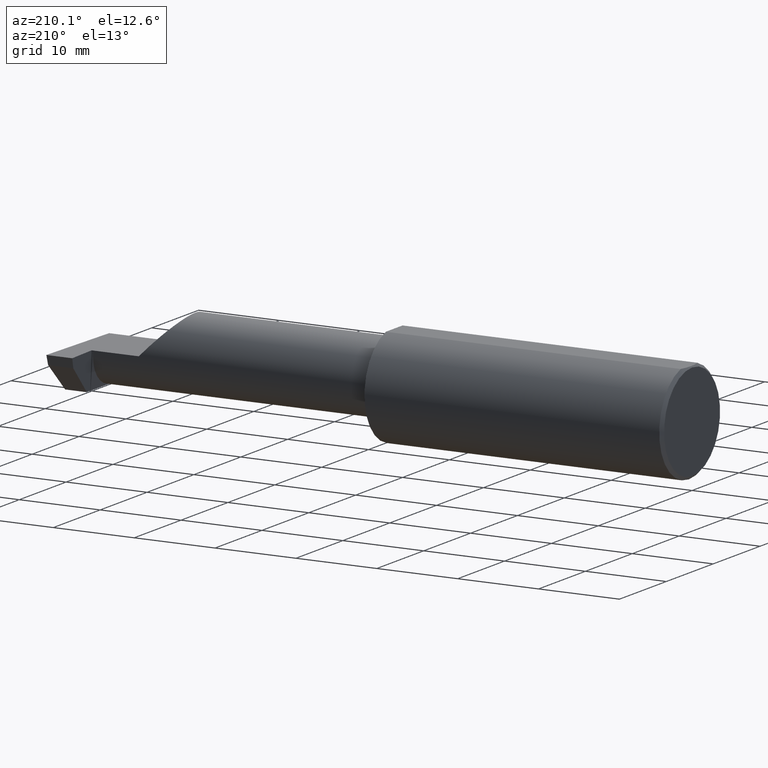
[diagram: clean part render]
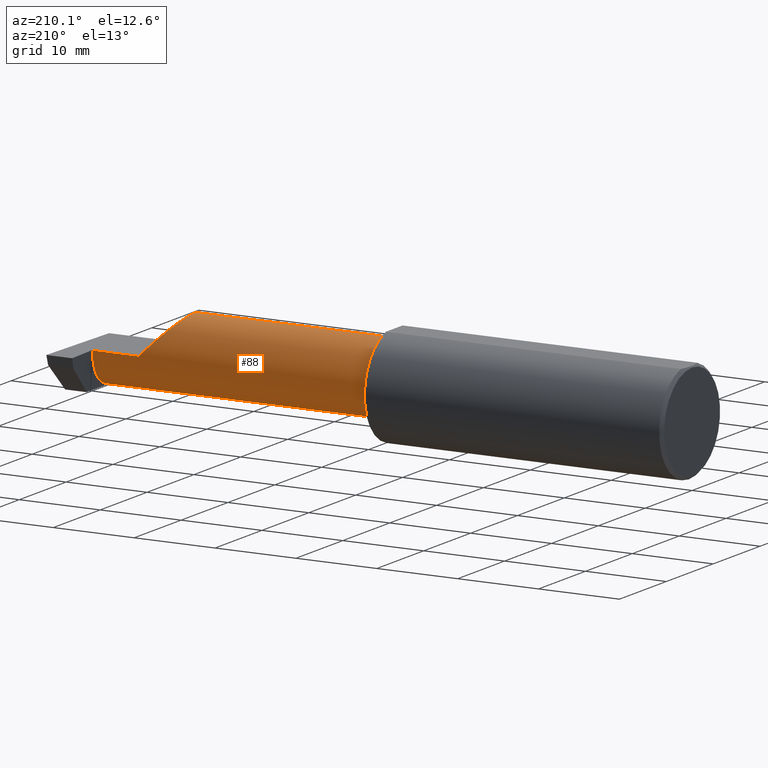
[diagram: same view with one face highlighted and labeled with its STEP entity id]
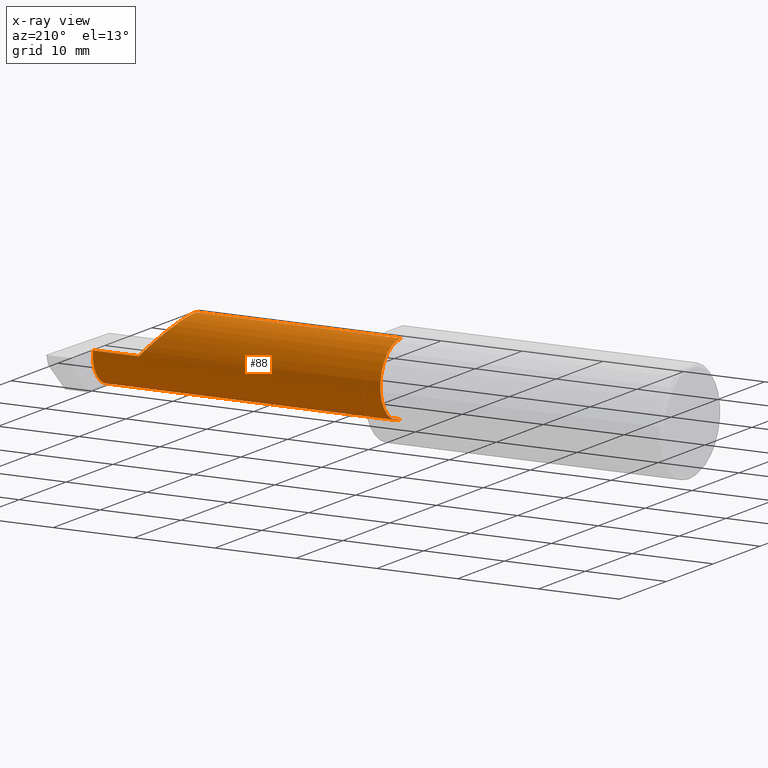
[diagram: x-ray of the same camera — body ghosted, the highlighted face saturated]
A machine part, auxiliary view. The second image highlights one B-rep face of the part: STEP entity #88.
The next image is the same camera in x-ray: the body ghosted, the highlighted face saturated — about 0% of this face is hidden behind the body in this view.
In plain terms, the highlighted cylindrical surface (partial cylindrical patch) has radius 4.445 mm, axis along (-1, -0, -0).
Its self-contained STEP definition (entity closure, byte-faithful):
#11 = DIRECTION ( 'NONE',  ( -1.000000000000000000, -0.000000000000000000, -0.000000000000000000 ) ) ;
#33 = ORIENTED_EDGE ( 'NONE', *, *, #276, .T. ) ;
#38 = AXIS2_PLACEMENT_3D ( 'NONE', #550, #723, #245 ) ;
#46 = EDGE_CURVE ( 'NONE', #192, #658, #529, .T. ) ;
#51 = CARTESIAN_POINT ( 'NONE',  ( 2.885036419112081862, -0.01887343476265496492, -0.1750000000000000444 ) ) ;
#63 = DIRECTION ( 'NONE',  ( -1.000000000000000000, -0.000000000000000000, -0.000000000000000000 ) ) ;
#73 = EDGE_CURVE ( 'NONE', #150, #333, #114, .T. ) ;
#88 = ADVANCED_FACE ( 'NONE', ( #315 ), #474, .T. ) ;
#106 = DIRECTION ( 'NONE',  ( 1.000000000000000000, 0.000000000000000000, 0.000000000000000000 ) ) ;
#114 = LINE ( 'NONE', #613, #578 ) ;
#138 = CARTESIAN_POINT ( 'NONE',  ( 2.650000000000000355, 0.07414999999999997982, 4.286263797015727350E-17 ) ) ;
#148 = AXIS2_PLACEMENT_3D ( 'NONE', #505, #11, #258 ) ;
#150 = VERTEX_POINT ( 'NONE', #217 ) ;
#158 = VERTEX_POINT ( 'NONE', #222 ) ;
#188 = ORIENTED_EDGE ( 'NONE', *, *, #46, .T. ) ;
#192 = VERTEX_POINT ( 'NONE', #685 ) ;
#201 = ORIENTED_EDGE ( 'NONE', *, *, #73, .T. ) ;
#209 = VERTEX_POINT ( 'NONE', #496 ) ;
#211 = VECTOR ( 'NONE', #106, 39.37007874015748143 ) ;
#217 = CARTESIAN_POINT ( 'NONE',  ( 2.885029432995152465, -0.1008500000000000091, -0.1749999999999999889 ) ) ;
#221 = CARTESIAN_POINT ( 'NONE',  ( 2.874000000000000110, 0.07414987299205305638, -0.0002108382441793307837 ) ) ;
#222 = CARTESIAN_POINT ( 'NONE',  ( 2.475000000000001421, -0.1008499999999999674, 0.1749999999999999889 ) ) ;
#235 = CARTESIAN_POINT ( 'NONE',  ( 2.874000000000000110, 0.07414987299205305638, -0.0002108382441793307837 ) ) ;
#240 = DIRECTION ( 'NONE',  ( 0.000000000000000000, 0.000000000000000000, 1.000000000000000000 ) ) ;
#242 = CARTESIAN_POINT ( 'NONE',  ( 1.450000000000000178, 0.07414999999999997982, 1.898202538678394254E-16 ) ) ;
#244 = EDGE_CURVE ( 'NONE', #209, #333, #668, .T. ) ;
#245 = DIRECTION ( 'NONE',  ( 0.000000000000000000, 0.000000000000000000, 1.000000000000000000 ) ) ;
#246 = VERTEX_POINT ( 'NONE', #501 ) ;
#258 = DIRECTION ( 'NONE',  ( 0.000000000000000000, 0.000000000000000000, 1.000000000000000000 ) ) ;
#263 = EDGE_CURVE ( 'NONE', #150, #246, #376, .T. ) ;
#276 = EDGE_CURVE ( 'NONE', #506, #192, #421, .T. ) ;
#284 = EDGE_CURVE ( 'NONE', #246, #658, #650, .T. ) ;
#293 = CARTESIAN_POINT ( 'NONE',  ( 2.874689495973013820, 0.07413112468343002748, -0.01577237022675150382 ) ) ;
#297 = CARTESIAN_POINT ( 'NONE',  ( 2.874000000000000110, -0.1008499999999999674, 0.000000000000000000 ) ) ;
#298 = CARTESIAN_POINT ( 'NONE',  ( 1.474999999999999867, -0.1008499999999999536, -0.1749999999999999889 ) ) ;
#315 = FACE_OUTER_BOUND ( 'NONE', #519, .T. ) ;
#324 = CARTESIAN_POINT ( 'NONE',  ( 2.650000000000000355, 0.07414999999999997982, 4.286263797015727350E-17 ) ) ;
#328 = ORIENTED_EDGE ( 'NONE', *, *, #244, .F. ) ;
#333 = VERTEX_POINT ( 'NONE', #298 ) ;
#349 = CARTESIAN_POINT ( 'NONE',  ( 2.875372681961405608, 0.07204909126152565790, -0.03119400421533637113 ) ) ;
#372 = VECTOR ( 'NONE', #63, 39.37007874015748143 ) ;
#375 = ORIENTED_EDGE ( 'NONE', *, *, #263, .F. ) ;
#376 =( BOUNDED_CURVE ( )  B_SPLINE_CURVE ( 3, ( #591, #51, #544, #655 ),
 .UNSPECIFIED., .F., .T. ) 
 B_SPLINE_CURVE_WITH_KNOTS ( ( 4, 4 ),
 ( 3.140373936913444908, 4.443983221546777607 ),
 .UNSPECIFIED. ) 
 CURVE ( )  GEOMETRIC_REPRESENTATION_ITEM ( )  RATIONAL_B_SPLINE_CURVE ( ( 1.000000000000000000, 0.8633269052189371795, 0.8633269052189371795, 1.000000000000000000 ) ) 
 REPRESENTATION_ITEM ( '' )  );
#386 = ORIENTED_EDGE ( 'NONE', *, *, #398, .T. ) ;
#398 = EDGE_CURVE ( 'NONE', #158, #506, #565, .T. ) ;
#421 = LINE ( 'NONE', #242, #211 ) ;
#433 = LINE ( 'NONE', #735, #372 ) ;
#438 = AXIS2_PLACEMENT_3D ( 'NONE', #297, #489, #240 ) ;
#441 = EDGE_CURVE ( 'NONE', #158, #209, #433, .T. ) ;
#474 = CYLINDRICAL_SURFACE ( 'NONE', #38, 0.1749999999999999889 ) ;
#479 = ORIENTED_EDGE ( 'NONE', *, *, #284, .F. ) ;
#488 = CARTESIAN_POINT ( 'NONE',  ( 2.475000000000001421, -0.1008499999999999674, 0.1749999999999999889 ) ) ;
#489 = DIRECTION ( 'NONE',  ( -1.000000000000000000, -0.000000000000000000, -0.000000000000000000 ) ) ;
#496 = CARTESIAN_POINT ( 'NONE',  ( 1.474999999999999867, -0.1008499999999999674, 0.1749999999999999889 ) ) ;
#501 = CARTESIAN_POINT ( 'NONE',  ( 2.876037492458068279, 0.06794054266098323303, -0.04620338416404774079 ) ) ;
#505 = CARTESIAN_POINT ( 'NONE',  ( 1.474999999999999867, -0.1008499999999999674, 0.000000000000000000 ) ) ;
#506 = VERTEX_POINT ( 'NONE', #324 ) ;
#519 = EDGE_LOOP ( 'NONE', ( #375, #201, #328, #530, #386, #33, #188, #479 ) ) ;
#529 = CIRCLE ( 'NONE', #438, 0.1749999999999999889 ) ;
#530 = ORIENTED_EDGE ( 'NONE', *, *, #441, .F. ) ;
#544 = CARTESIAN_POINT ( 'NONE',  ( 2.881564601548835647, 0.04629714416892564965, -0.1252712066320194051 ) ) ;
#550 = CARTESIAN_POINT ( 'NONE',  ( 1.450000000000000178, -0.1008499999999999674, 0.000000000000000000 ) ) ;
#565 =( BOUNDED_CURVE ( )  B_SPLINE_CURVE ( 3, ( #488, #683, #622, #138 ),
 .UNSPECIFIED., .F., .T. ) 
 B_SPLINE_CURVE_WITH_KNOTS ( ( 4, 4 ),
 ( 0.000000000000000000, 1.570796326794896558 ),
 .UNSPECIFIED. ) 
 CURVE ( )  GEOMETRIC_REPRESENTATION_ITEM ( )  RATIONAL_B_SPLINE_CURVE ( ( 1.000000000000000000, 0.8047378541243649375, 0.8047378541243649375, 1.000000000000000000 ) ) 
 REPRESENTATION_ITEM ( '' )  );
#578 = VECTOR ( 'NONE', #674, 39.37007874015748143 ) ;
#591 = CARTESIAN_POINT ( 'NONE',  ( 2.885029432995152465, -0.1008500000000000091, -0.1749999999999999889 ) ) ;
#613 = CARTESIAN_POINT ( 'NONE',  ( 1.450000000000000178, -0.1008499999999999536, -0.1749999999999999889 ) ) ;
#622 = CARTESIAN_POINT ( 'NONE',  ( 2.547487373415292744, 0.07414999999999996594, 0.1025126265847083745 ) ) ;
#650 =( BOUNDED_CURVE ( )  B_SPLINE_CURVE ( 3, ( #792, #349, #293, #235 ),
 .UNSPECIFIED., .F., .T. ) 
 B_SPLINE_CURVE_WITH_KNOTS ( ( 4, 4 ),
 ( 4.443983221546778495, 4.709965478757016655 ),
 .UNSPECIFIED. ) 
 CURVE ( )  GEOMETRIC_REPRESENTATION_ITEM ( )  RATIONAL_B_SPLINE_CURVE ( ( 1.000000000000000000, 0.9941131374841131185, 0.9941131374841131185, 1.000000000000000000 ) ) 
 REPRESENTATION_ITEM ( '' )  );
#655 = CARTESIAN_POINT ( 'NONE',  ( 2.876037492458068279, 0.06794054266098323303, -0.04620338416404774079 ) ) ;
#658 = VERTEX_POINT ( 'NONE', #221 ) ;
#668 = CIRCLE ( 'NONE', #148, 0.1749999999999999889 ) ;
#674 = DIRECTION ( 'NONE',  ( -1.000000000000000000, -0.000000000000000000, -0.000000000000000000 ) ) ;
#683 = CARTESIAN_POINT ( 'NONE',  ( 2.475000000000001421, 0.001662626584708371512, 0.1749999999999999889 ) ) ;
#685 = CARTESIAN_POINT ( 'NONE',  ( 2.874000000000000110, 0.07414999999999997982, 1.898204072638045646E-16 ) ) ;
#723 = DIRECTION ( 'NONE',  ( -1.000000000000000000, -0.000000000000000000, -0.000000000000000000 ) ) ;
#735 = CARTESIAN_POINT ( 'NONE',  ( 1.450000000000000178, -0.1008499999999999674, 0.1749999999999999889 ) ) ;
#792 = CARTESIAN_POINT ( 'NONE',  ( 2.876037492458068279, 0.06794054266098323303, -0.04620338416404774079 ) ) ;